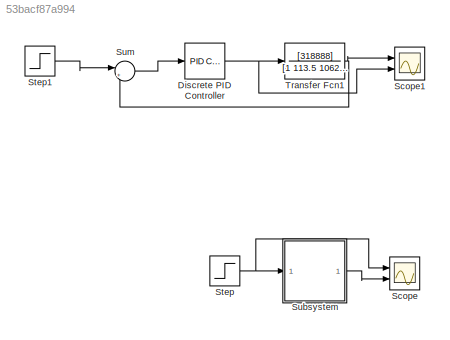
MODEL slx_53bacf87a994
KIND model
CONFIG AbsTol = auto
CONFIG EnableMultiTasking = off
CONFIG FixedStep = 0.001
CONFIG MaxStep = auto
CONFIG MinStep = auto
CONFIG PostLoadFcn = , if any(exist('dsrtsu_mdlpostloadfcn', 'file') == [2, 3, 6]), try dsrtsu_mdlpostloadfcn('Execute', bdroot); catch fprintf('Error in PostLoadFcn (dsrtsu_mdlpostloadfcn) for model "%s":\n %s\n', bdroot, lasterr); end, end, \n
CONFIG RelTol = 1e-3
CONFIG SampleTimeConstraint = Unconstrained
CONFIG Solver = ode1
CONFIG SolverName = ode1
CONFIG StartTime = 0.0
CONFIG StopTime = 10
BLOCK [Reference] Discrete PID Controller  REF=simulink/Continuous/PID Controller
  Ports = [1, 1]
  SourceBlock = simulink/Continuous/PID Controller
  SourceProductBaseCode = SL
  SourceProductName = Simulink
  SourceType = PID 1dof
BLOCK [Scope] Scope
  NumInputPorts = 2
  Ports = [2]
  ScopeSpecificationString = Simulink.scopes.TimeScopeBlockCfg('CurrentConfiguration', extmgr.ConfigurationSet(extmgr.Configuration('Core','General UI',true),extmgr.Configuration('Core','Source UI',true),extmgr.Configuration('Sources','WiredSimulink',true),extmgr.Configuration('Visuals','Time Domain',true,'SerializedDisplays',{struct('MinYLimReal','-0.25','MaxYLimReal','2.25','YLabelReal','','MinYLimMag','0.00000','MaxYLimMag...<+1699ch>
BLOCK [Scope] Scope1
  NumInputPorts = 2
  Ports = [2]
  ScopeSpecificationString = Simulink.scopes.TimeScopeBlockCfg('CurrentConfiguration', extmgr.ConfigurationSet(extmgr.Configuration('Core','General UI',true),extmgr.Configuration('Core','Source UI',true),extmgr.Configuration('Sources','WiredSimulink',true,'DataLoggingVariableName','ScopeData1'),extmgr.Configuration('Visuals','Time Domain',true,'SerializedDisplays',{struct('MinYLimReal','15.40109','MaxYLimReal','34.09897','YLa...<+1433ch>
BLOCK [Step] Step
  SampleTime = 0
BLOCK [Step] Step1
  SampleTime = 0
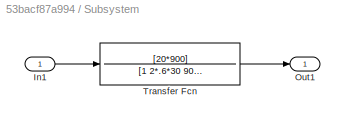
BLOCK [SubSystem] Subsystem
  Ports = [1, 1]
  RequestExecContextInheritance = off
  Variant = off
BLOCK [Inport] Subsystem/In1
  IconDisplay = Port number
BLOCK [Outport] Subsystem/Out1
  IconDisplay = Port number
BLOCK [TransferFcn] Subsystem/Transfer Fcn
  Denominator = [1 2*.6*30 900]
  Numerator = [20*900]
BLOCK [Sum] Sum
  IconShape = round
  InputSameDT = off
  Inputs = |+-
  OutDataTypeStr = Inherit: Inherit via internal rule
  Ports = [2, 1]
  SaturateOnIntegerOverflow = off
BLOCK [TransferFcn] Transfer Fcn1
  Denominator = [1 113.5 10629]
  Numerator = [318888]
NET Discrete PID Controller:1 -> Scope1:2, Transfer Fcn1:1
LINE Step1:1 -> Sum:1
NET Step:1 -> Scope:1, Subsystem:1
LINE Subsystem/In1:1 -> Subsystem/Transfer Fcn:1
LINE Subsystem/Transfer Fcn:1 -> Subsystem/Out1:1
LINE Subsystem:1 -> Scope:2
LINE Sum:1 -> Discrete PID Controller:1
NET Transfer Fcn1:1 -> Scope1:1, Sum:2
note: NET lines group one-source signal fan-out (src -> all destinations, sorted); 1:1 wires keep LINE
